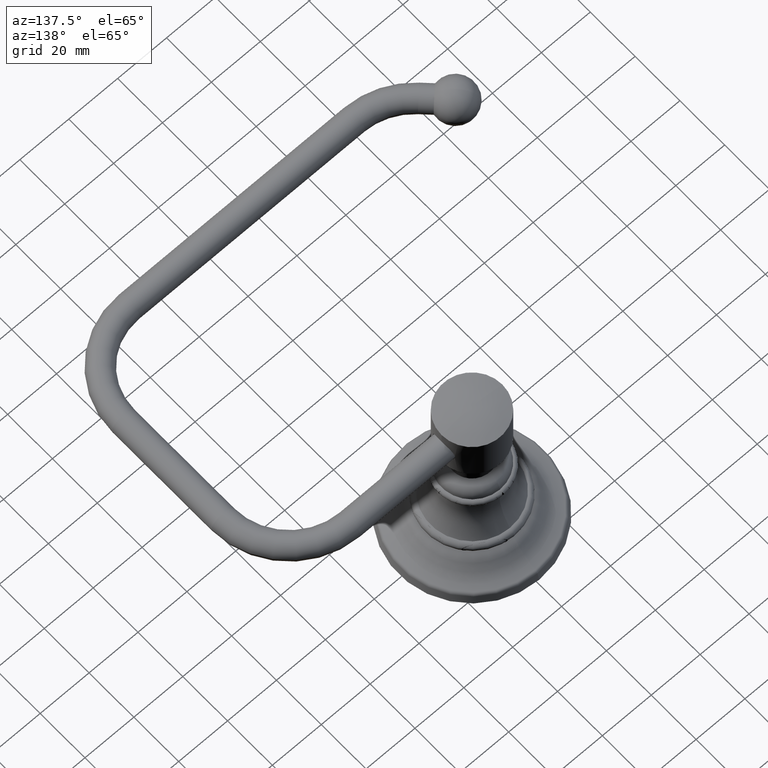
[diagram: clean part render]
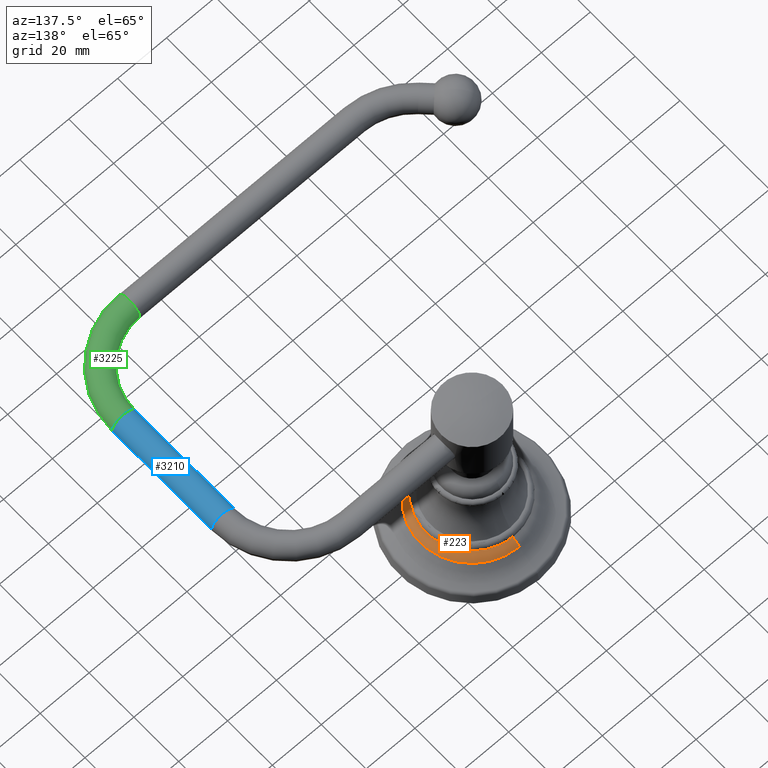
[diagram: same view with three faces highlighted in distinct colors, each labeled with its STEP entity id]
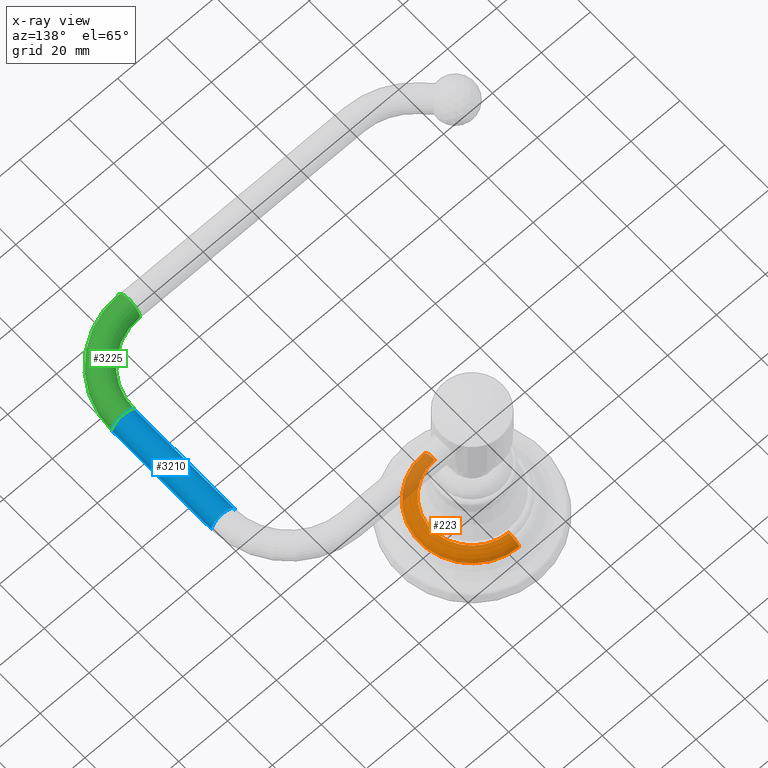
[diagram: x-ray of the same camera — body ghosted, the three highlighted faces saturated]
A machine part, auxiliary view with three faces highlighted in distinct colors.
The next image is the same camera in x-ray (body ghosted, the three faces saturated) — at least one of them is partly hidden behind the body in this view.
Their STEP definitions:

[orange] entity #223 — the highlighted toroidal blend (fillet) surface has major radius 16.4344 mm and minor (blend) radius 5.6388 mm.
#60=CARTESIAN_POINT('',(0.E0,6.470232520277E-1,2.53E-1));
#61=DIRECTION('',(-1.E0,0.E0,0.E0));
#62=DIRECTION('',(0.E0,0.E0,1.E0));
#63=AXIS2_PLACEMENT_3D('',#60,#61,#62);
#65=CARTESIAN_POINT('',(0.E0,0.E0,4.75E-1));
#66=DIRECTION('',(0.E0,0.E0,1.E0));
#67=DIRECTION('',(0.E0,-1.E0,0.E0));
#68=AXIS2_PLACEMENT_3D('',#65,#66,#67);
#70=CARTESIAN_POINT('',(0.E0,-6.470232520277E-1,2.53E-1));
#71=DIRECTION('',(1.E0,0.E0,0.E0));
#72=DIRECTION('',(0.E0,0.E0,1.E0));
#73=AXIS2_PLACEMENT_3D('',#70,#71,#72);
#75=CARTESIAN_POINT('',(0.E0,0.E0,3.742440413521E-1));
#76=DIRECTION('',(0.E0,0.E0,1.E0));
#77=DIRECTION('',(0.E0,-1.E0,0.E0));
#78=AXIS2_PLACEMENT_3D('',#75,#76,#77);
#130=CARTESIAN_POINT('',(0.E0,-6.470232519218E-1,4.75E-1));
#131=CARTESIAN_POINT('',(0.E0,6.470232519218E-1,4.75E-1));
#132=VERTEX_POINT('',#130);
#133=VERTEX_POINT('',#131);
#134=CARTESIAN_POINT('',(0.E0,-8.329906750797E-1,3.742440413521E-1));
#135=CARTESIAN_POINT('',(0.E0,8.329906750797E-1,3.742440413521E-1));
#136=VERTEX_POINT('',#134);
#137=VERTEX_POINT('',#135);
#210=CARTESIAN_POINT('',(0.E0,0.E0,2.53E-1));
#211=DIRECTION('',(0.E0,0.E0,-1.E0));
#212=DIRECTION('',(-8.144453609324E-3,-9.999668333877E-1,0.E0));
#213=AXIS2_PLACEMENT_3D('',#210,#211,#212);
#214=TOROIDAL_SURFACE('',#213,6.470232520277E-1,2.22E-1);
#216=ORIENTED_EDGE('',*,*,#215,.T.);
#217=ORIENTED_EDGE('',*,*,#205,.T.);
#219=ORIENTED_EDGE('',*,*,#218,.F.);
#220=ORIENTED_EDGE('',*,*,#202,.F.);
#221=EDGE_LOOP('',(#216,#217,#219,#220));
#222=FACE_OUTER_BOUND('',#221,.F.);
#223=ADVANCED_FACE('',(#222),#214,.T.);
#64=CIRCLE('',#63,2.22E-1);
#69=CIRCLE('',#68,6.470232519218E-1);
#74=CIRCLE('',#73,2.22E-1);
#79=CIRCLE('',#78,8.329906750797E-1);
#202=EDGE_CURVE('',#132,#136,#74,.T.);
#205=EDGE_CURVE('',#133,#137,#64,.T.);
#215=EDGE_CURVE('',#132,#133,#69,.T.);
#218=EDGE_CURVE('',#136,#137,#79,.T.);

[blue] entity #3210 — the highlighted cylindrical surface (edge-blend (fillet) strip) has radius 4.7625 mm, axis along (0, -1, 0).
#2922=DIRECTION('',(0.E0,-1.E0,0.E0));
#2923=VECTOR('',#2922,1.75E0);
#2924=CARTESIAN_POINT('',(2.844E0,-1.0625E0,2.531E0));
#2925=LINE('',#2924,#2923);
#2926=CARTESIAN_POINT('',(3.0315E0,-1.0625E0,2.531E0));
#2927=DIRECTION('',(0.E0,-1.E0,0.E0));
#2928=DIRECTION('',(1.E0,0.E0,0.E0));
#2929=AXIS2_PLACEMENT_3D('',#2926,#2927,#2928);
#2931=DIRECTION('',(0.E0,-1.E0,0.E0));
#2932=VECTOR('',#2931,1.75E0);
#2933=CARTESIAN_POINT('',(3.219E0,-1.0625E0,2.531E0));
#2934=LINE('',#2933,#2932);
#2935=CARTESIAN_POINT('',(3.0315E0,-2.8125E0,2.531E0));
#2936=DIRECTION('',(0.E0,-1.E0,0.E0));
#2937=DIRECTION('',(1.E0,0.E0,0.E0));
#2938=AXIS2_PLACEMENT_3D('',#2935,#2936,#2937);
#3055=CARTESIAN_POINT('',(2.844E0,-1.0625E0,2.531E0));
#3056=CARTESIAN_POINT('',(3.219E0,-1.0625E0,2.531E0));
#3057=VERTEX_POINT('',#3055);
#3058=VERTEX_POINT('',#3056);
#3059=CARTESIAN_POINT('',(2.844E0,-2.8125E0,2.531E0));
#3060=CARTESIAN_POINT('',(3.219E0,-2.8125E0,2.531E0));
#3061=VERTEX_POINT('',#3059);
#3062=VERTEX_POINT('',#3060);
#3198=CARTESIAN_POINT('',(3.0315E0,-1.0625E0,2.531E0));
#3199=DIRECTION('',(0.E0,-1.E0,0.E0));
#3200=DIRECTION('',(-1.E0,0.E0,0.E0));
#3201=AXIS2_PLACEMENT_3D('',#3198,#3199,#3200);
#3202=CYLINDRICAL_SURFACE('',#3201,1.875E-1);
#3203=ORIENTED_EDGE('',*,*,#3163,.F.);
#3204=ORIENTED_EDGE('',*,*,#3193,.T.);
#3206=ORIENTED_EDGE('',*,*,#3205,.T.);
#3207=ORIENTED_EDGE('',*,*,#3189,.F.);
#3208=EDGE_LOOP('',(#3203,#3204,#3206,#3207));
#3209=FACE_OUTER_BOUND('',#3208,.F.);
#3210=ADVANCED_FACE('',(#3209),#3202,.T.);
#2930=CIRCLE('',#2929,1.875E-1);
#2939=CIRCLE('',#2938,1.875E-1);
#3163=EDGE_CURVE('',#3058,#3057,#2930,.T.);
#3189=EDGE_CURVE('',#3057,#3061,#2925,.T.);
#3193=EDGE_CURVE('',#3058,#3062,#2934,.T.);
#3205=EDGE_CURVE('',#3062,#3061,#2939,.T.);

[green] entity #3225 — the highlighted toroidal blend (fillet) surface has major radius 26.9875 mm and minor (blend) radius 4.7625 mm.
#2935=CARTESIAN_POINT('',(3.0315E0,-2.8125E0,2.531E0));
#2936=DIRECTION('',(0.E0,-1.E0,0.E0));
#2937=DIRECTION('',(1.E0,0.E0,0.E0));
#2938=AXIS2_PLACEMENT_3D('',#2935,#2936,#2937);
#2940=CARTESIAN_POINT('',(1.969E0,-2.8125E0,2.531E0));
#2941=DIRECTION('',(0.E0,0.E0,-1.E0));
#2942=DIRECTION('',(1.E0,0.E0,0.E0));
#2943=AXIS2_PLACEMENT_3D('',#2940,#2941,#2942);
#2950=CARTESIAN_POINT('',(1.969E0,-2.8125E0,2.531E0));
#2951=DIRECTION('',(0.E0,0.E0,-1.E0));
#2952=DIRECTION('',(1.E0,0.E0,0.E0));
#2953=AXIS2_PLACEMENT_3D('',#2950,#2951,#2952);
#2964=CARTESIAN_POINT('',(1.969E0,-3.875E0,2.531E0));
#2965=DIRECTION('',(-1.E0,0.E0,0.E0));
#2966=DIRECTION('',(0.E0,-1.E0,0.E0));
#2967=AXIS2_PLACEMENT_3D('',#2964,#2965,#2966);
#3059=CARTESIAN_POINT('',(2.844E0,-2.8125E0,2.531E0));
#3060=CARTESIAN_POINT('',(3.219E0,-2.8125E0,2.531E0));
#3061=VERTEX_POINT('',#3059);
#3062=VERTEX_POINT('',#3060);
#3063=CARTESIAN_POINT('',(1.969E0,-3.6875E0,2.531E0));
#3064=CARTESIAN_POINT('',(1.969E0,-4.0625E0,2.531E0));
#3065=VERTEX_POINT('',#3063);
#3066=VERTEX_POINT('',#3064);
#3211=CARTESIAN_POINT('',(1.969E0,-2.8125E0,2.531E0));
#3212=DIRECTION('',(0.E0,0.E0,-1.E0));
#3213=DIRECTION('',(-1.E0,0.E0,0.E0));
#3214=AXIS2_PLACEMENT_3D('',#3211,#3212,#3213);
#3215=TOROIDAL_SURFACE('',#3214,1.0625E0,1.875E-1);
#3216=ORIENTED_EDGE('',*,*,#3205,.F.);
#3218=ORIENTED_EDGE('',*,*,#3217,.T.);
#3220=ORIENTED_EDGE('',*,*,#3219,.T.);
#3222=ORIENTED_EDGE('',*,*,#3221,.F.);
#3223=EDGE_LOOP('',(#3216,#3218,#3220,#3222));
#3224=FACE_OUTER_BOUND('',#3223,.F.);
#3225=ADVANCED_FACE('',(#3224),#3215,.T.);
#2939=CIRCLE('',#2938,1.875E-1);
#2944=CIRCLE('',#2943,1.25E0);
#2954=CIRCLE('',#2953,8.75E-1);
#2968=CIRCLE('',#2967,1.875E-1);
#3205=EDGE_CURVE('',#3062,#3061,#2939,.T.);
#3217=EDGE_CURVE('',#3062,#3066,#2944,.T.);
#3219=EDGE_CURVE('',#3066,#3065,#2968,.T.);
#3221=EDGE_CURVE('',#3061,#3065,#2954,.T.);